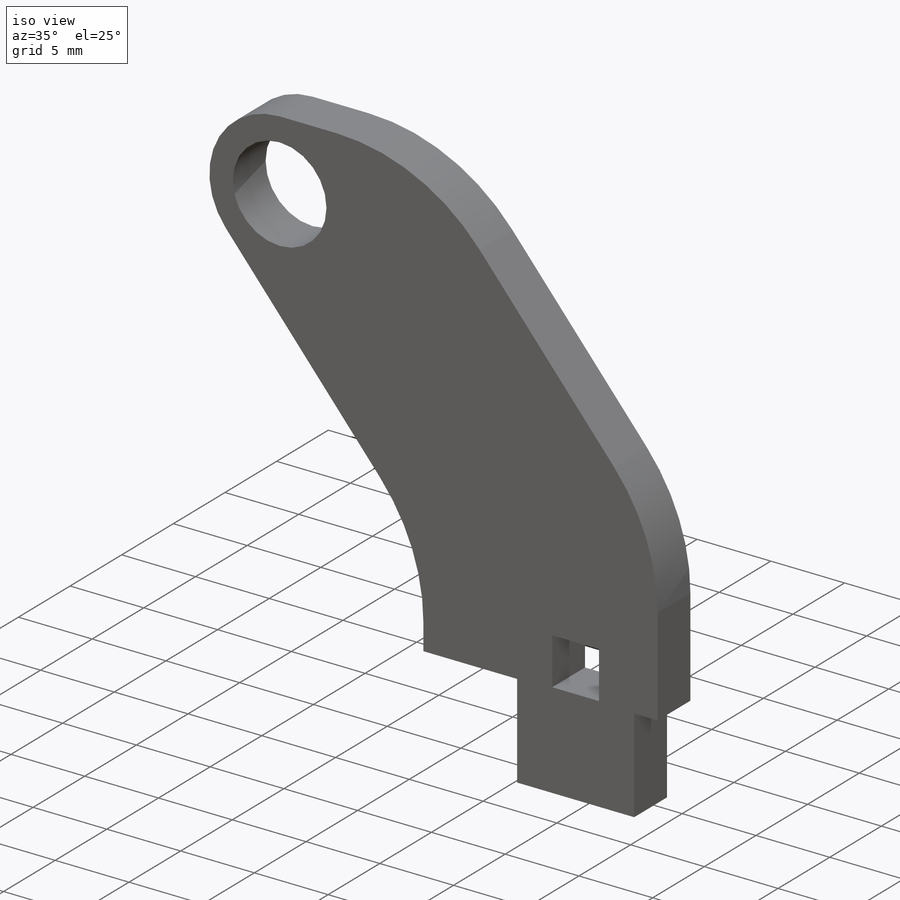
[diagram: iso view]
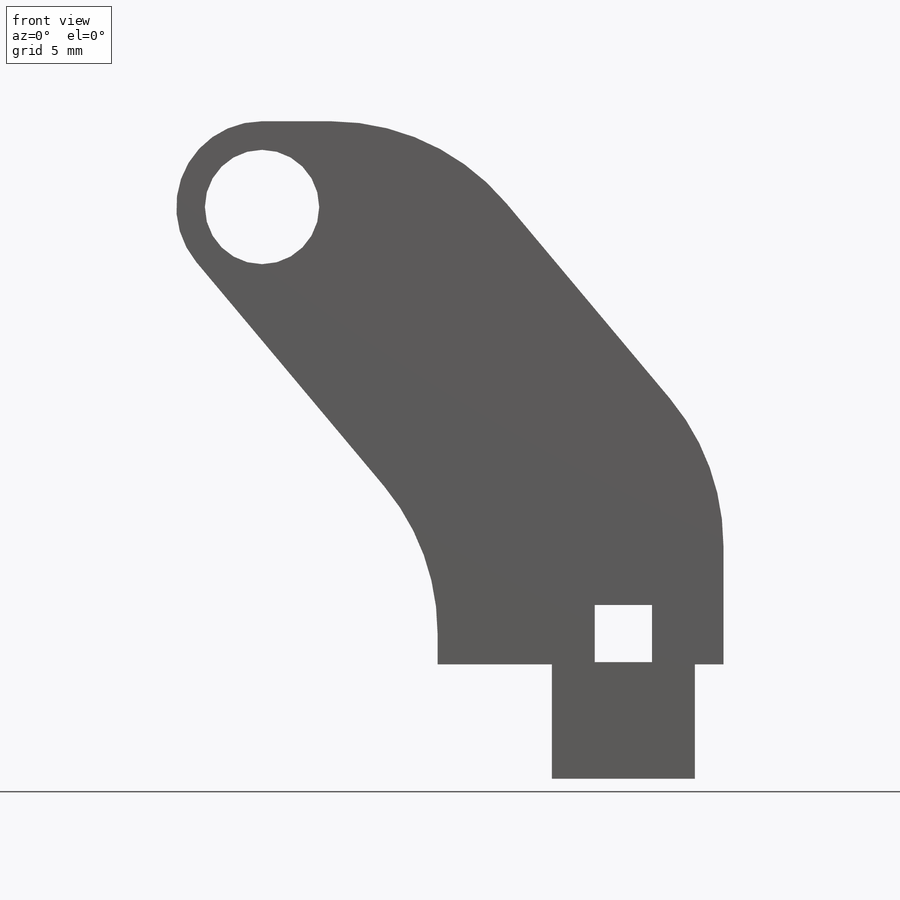
[diagram: front view]
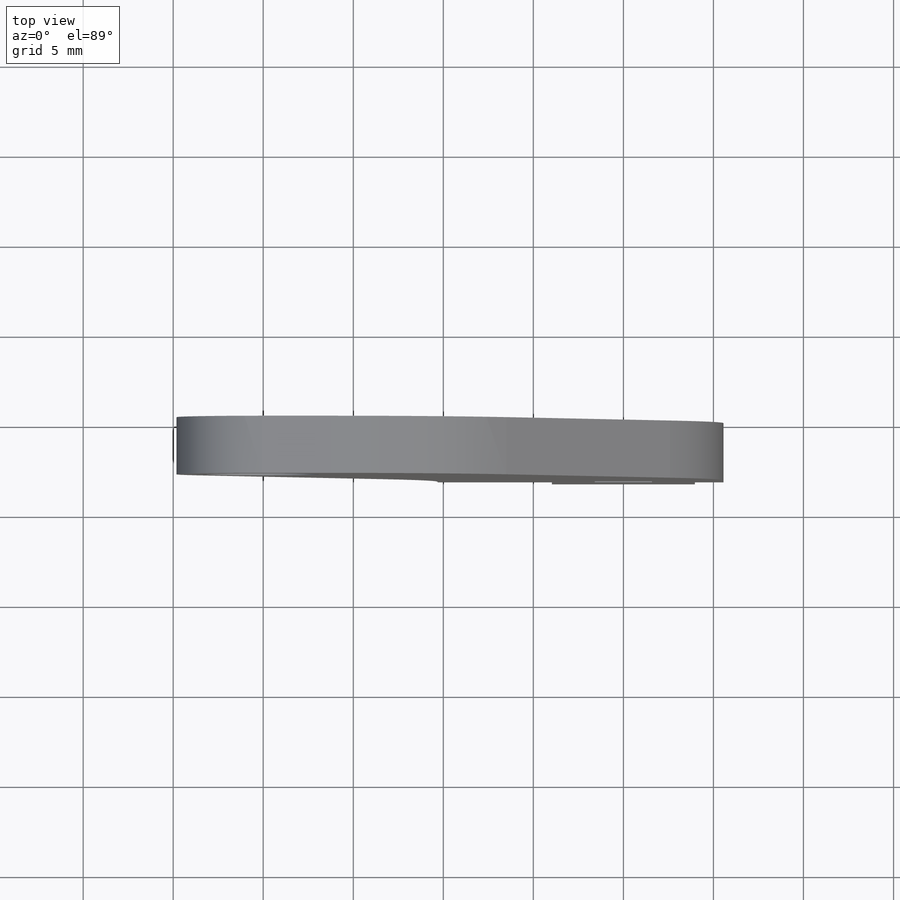
[diagram: top view]
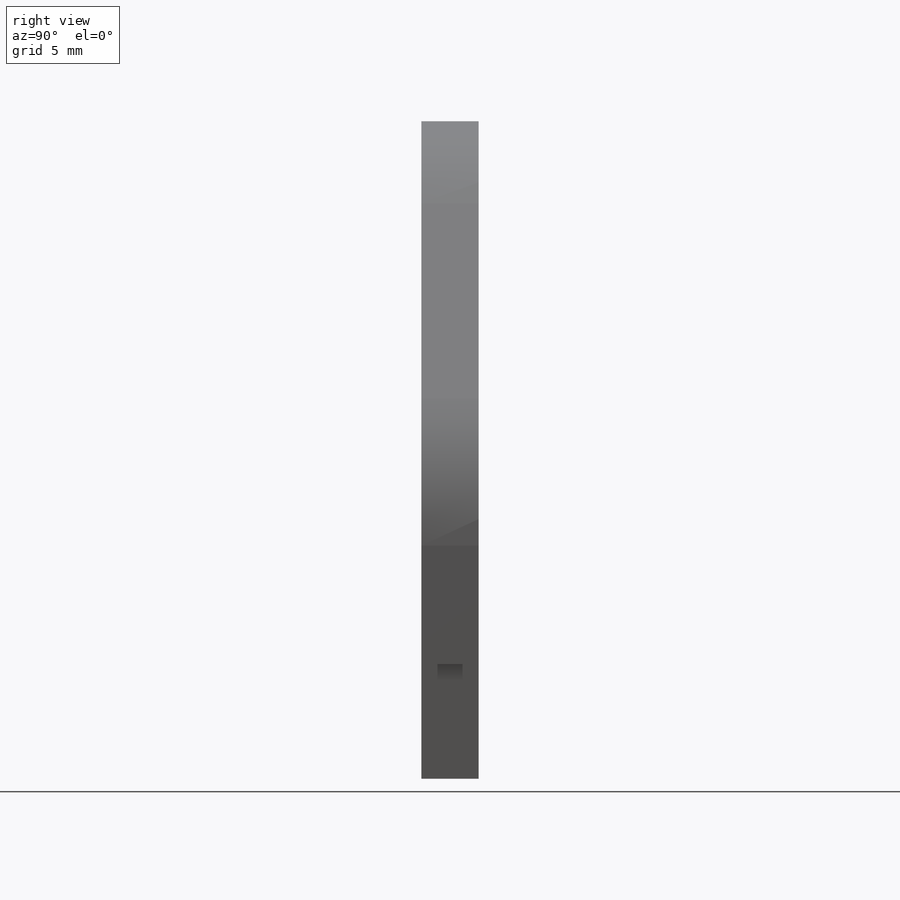
[diagram: right view]
SOLIDWORKS PART (.sldprt)
format: sldprt  version: not decoded by parser v0  size: 245,760 bytes
history: native  units: mm
features: sketch x6, extrude x2, cut_extrude x2, material x1, hole x1, fillet x1 (+12 scaffold rows collapsed)
feature tree (25):
  scaffold x12  (default folders/planes/origin — collapsed)
  material  "Material <not specified>"
  sketch  "Sketch1"  dims[c1.D4=6.35mm c1.D5=6.35mm c1.D10=~11.994032mm c1.D1=7.9375mm c1.D2=6.35mm c1.D3=1.5875mm c2.D4=1.5875mm c2.D5=1.5875mm c2.D6=12.7mm c2.D7=12.7mm c2.D8=~13.088401mm c3.D7=6.35mm c3.D8=20.066mm c3.D5=50.8mm c3.D9=6.35mm c4.D7=25.4mm c4.D10=1.5875mm c4.D5=6.35mm c4.D6=~13.044268mm c5.D6=45.0deg c6.D6=6.35mm]
  extrude  "Boss-Extrude1"  Depth=3.175mm
  sketch  "Sketch2"  dims[D1=3.175mm D2=3.175mm D3=0.127mm]
  cut_extrude  "Cut-Extrude1"  [1 undecoded]
  sketch  "Sketch6"  dims[D1=9.525mm D2=12.7mm D3=15.875mm D4=6.35mm]
  extrude  "Boss-Extrude2"  [1 undecoded]
  hole  "3/8-24 Tapped Hole1"  Diameter=8.4328mm Depth=24.384mm
  sketch  "Sketch8"
  sketch  "Sketch7"  dims[hole-wizard template sketch: 46 standard entries collapsed; hole parameters kept: c15.Tap Drill Dia.=8.4328mm c15.Tap Drill Depth=24.384mm c15.D3=~14.816244mm c15.Drill Angle=118.0deg]
  sketch  "Sketch9"  dims[D1=5.08mm]
  cut_extrude  "Cut-Extrude2"  [1 undecoded]
  fillet  "Fillet1"  Radius=12.7mm
decode coverage: 8 of 12 modeling features carry decoded parameters
note: ~ marks probable driven/reference dimensions
note: 3 parameter values undecoded
summary: no parameter record found for 3 features
note: suppression state not decoded; provenance and decode notes live in map.json
